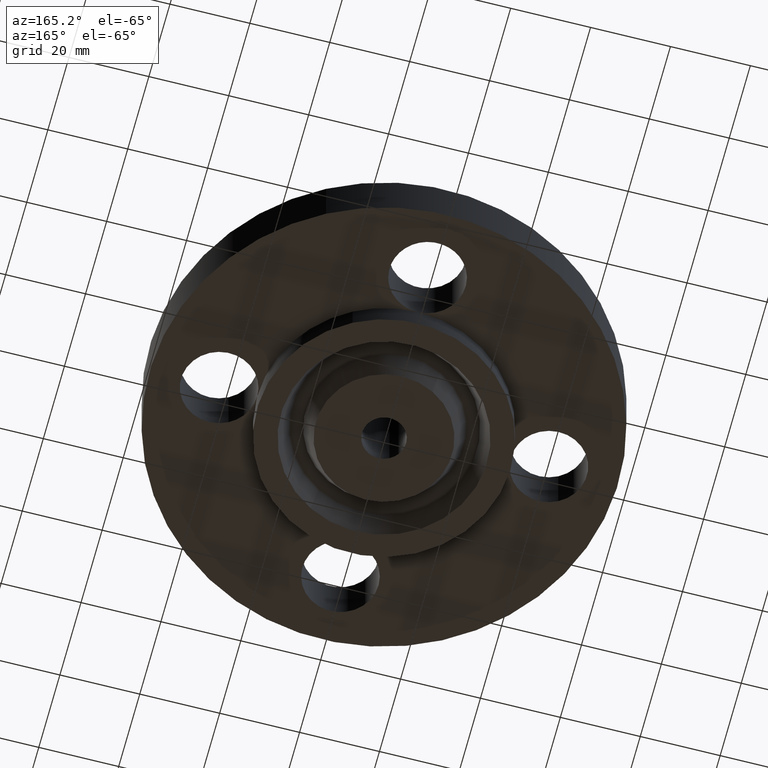
[diagram: clean part render]
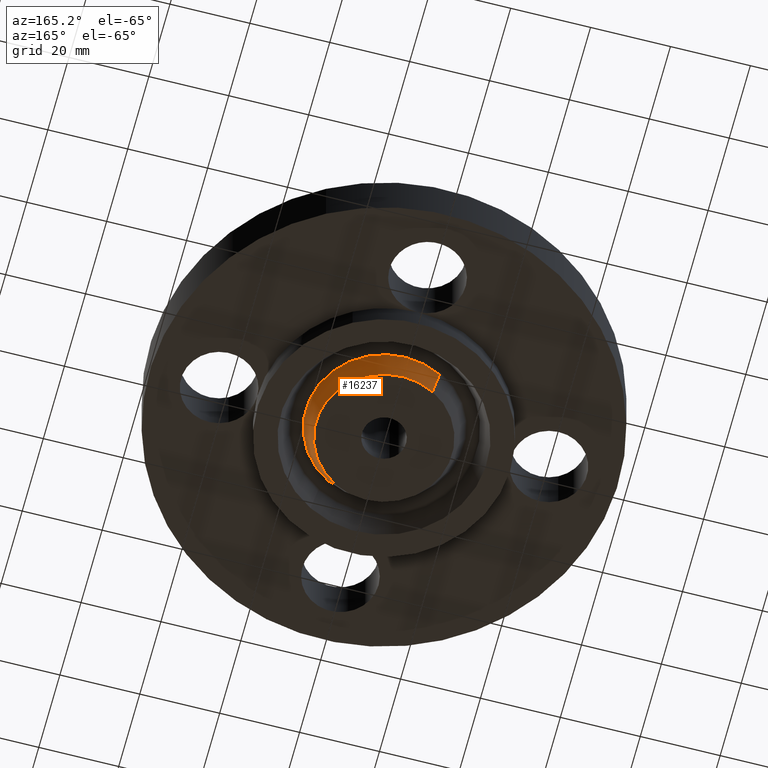
[diagram: same view with one face highlighted and labeled with its STEP entity id]
A machine part, auxiliary view. The second image highlights one B-rep face of the part: STEP entity #16237.
In plain terms, the highlighted conical surface has half-angle 23 deg.
Its self-contained STEP definition (entity closure, byte-faithful):
#15667=AXIS2_PLACEMENT_3D('Circle Axis2P3D',#15665,#15666,$) ;
#16210=AXIS2_PLACEMENT_3D('Cone Axis2P3D',#16207,#16208,#16209) ;
#16228=AXIS2_PLACEMENT_3D('Circle Axis2P3D',#16226,#16227,$) ;
#15662=CARTESIAN_POINT('Vertex',(0.369206329292,-0.675827652547,-0.0188873350169)) ;
#15665=CARTESIAN_POINT('Axis2P3D Location',(0.,0.,-0.0188873350169)) ;
#15669=CARTESIAN_POINT('Vertex',(-0.369206329292,0.675827652547,-0.0188873350171)) ;
#16207=CARTESIAN_POINT('Axis2P3D Location',(0.,0.,-0.310000000001)) ;
#16212=CARTESIAN_POINT('Line Origine',(-0.345690145618,0.63278156707,-0.134443667509)) ;
#16216=CARTESIAN_POINT('Vertex',(-0.322173961959,0.589735481622,-0.250000000001)) ;
#16219=CARTESIAN_POINT('Line Origine',(0.345690145618,-0.63278156707,-0.134443667509)) ;
#16223=CARTESIAN_POINT('Vertex',(0.322173961959,-0.589735481582,-0.250000000001)) ;
#16226=CARTESIAN_POINT('Axis2P3D Location',(0.,0.,-0.250000000001)) ;
#15666=DIRECTION('Axis2P3D Direction',(0.,0.,0.0393700787402)) ;
#16208=DIRECTION('Axis2P3D Direction',(0.,0.,0.0393700787402)) ;
#16209=DIRECTION('Axis2P3D XDirection',(0.0188750212049,-0.0345504945626,0.)) ;
#16213=DIRECTION('Vector Direction',(-0.00737505833566,0.0134999537303,0.0362403485611)) ;
#16220=DIRECTION('Vector Direction',(0.00737505833566,-0.0134999537303,0.0362403485611)) ;
#16227=DIRECTION('Axis2P3D Direction',(0.,0.,0.0393700787402)) ;
#16214=VECTOR('Line Direction',#16213,0.0393700787402) ;
#16221=VECTOR('Line Direction',#16220,0.0393700787402) ;
#16232=ORIENTED_EDGE('',*,*,#16218,.F.) ;
#16233=ORIENTED_EDGE('',*,*,#15671,.F.) ;
#16234=ORIENTED_EDGE('',*,*,#16225,.T.) ;
#16235=ORIENTED_EDGE('',*,*,#16230,.F.) ;
#16237=ADVANCED_FACE('PartBody',(#16236),#16211,.T.) ;
#15668=CIRCLE('generated circle',#15667,0.770101505996) ;
#16229=CIRCLE('generated circle',#16228,0.672000000003) ;
#16211=CONICAL_SURFACE('Cone',#16210,0.64653151103,0.401425727959) ;
#15671=EDGE_CURVE('',#15663,#15670,#15668,.T.) ;
#16218=EDGE_CURVE('',#15670,#16217,#16215,.F.) ;
#16225=EDGE_CURVE('',#15663,#16224,#16222,.F.) ;
#16230=EDGE_CURVE('',#16217,#16224,#16229,.F.) ;
#16231=EDGE_LOOP('',(#16232,#16233,#16234,#16235)) ;
#16236=FACE_OUTER_BOUND('',#16231,.T.) ;
#16215=LINE('Line',#16212,#16214) ;
#16222=LINE('Line',#16219,#16221) ;
#15663=VERTEX_POINT('',#15662) ;
#15670=VERTEX_POINT('',#15669) ;
#16217=VERTEX_POINT('',#16216) ;
#16224=VERTEX_POINT('',#16223) ;